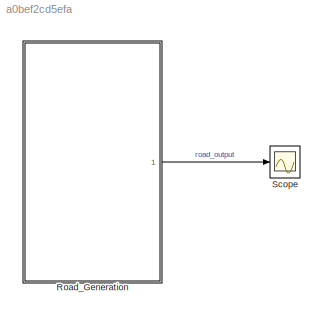
MODEL slx_a0bef2cd5efa
KIND model
CONFIG AbsTol = auto
CONFIG EnableMultiTasking = off
CONFIG FixedStep = auto
CONFIG MaxStep = 1e-4
CONFIG MinStep = auto
CONFIG RelTol = 1e-3
CONFIG SampleTimeConstraint = Unconstrained
CONFIG SolverName = VariableStepAuto
CONFIG StartTime = 0.0
CONFIG StopTime = 10.0
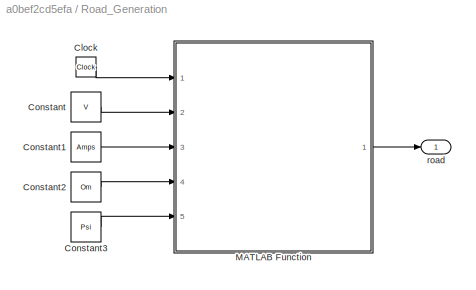
BLOCK [SubSystem] Road_Generation
  Ports = [0, 1]
  RequestExecContextInheritance = off
BLOCK [Clock] Road_Generation/Clock
BLOCK [Constant] Road_Generation/Constant
  Value = V
BLOCK [Constant] Road_Generation/Constant1
  Value = Amps
BLOCK [Constant] Road_Generation/Constant2
  Value = Om
BLOCK [Constant] Road_Generation/Constant3
  Value = Psi
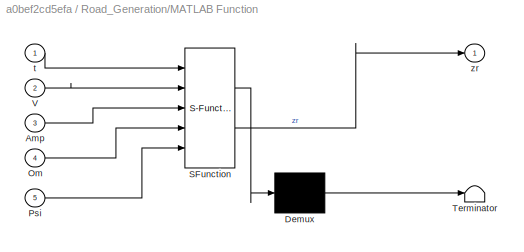
BLOCK [SubSystem] Road_Generation/MATLAB Function
  ErrorFcn = Stateflow.Translate.translate
  PermitHierarchicalResolution = ExplicitOnly
  Ports = [5, 1]
  RequestExecContextInheritance = off
  SFBlockType = MATLAB Function
  TreatAsAtomicUnit = on
BLOCK [Demux] Road_Generation/MATLAB Function/ Demux 
  Outputs = 1
  Ports = [1, 1]
BLOCK [S-Function] Road_Generation/MATLAB Function/ SFunction 
  EnableBusSupport = on
  FunctionName = sf_sfun
  PortCounts = [5 2]
  Ports = [5, 2]
  SFcnIsStateOwnerBlock = off
  SFunctionDeploymentMode = off
  Tag = Stateflow S-Function 2
BLOCK [Terminator] Road_Generation/MATLAB Function/ Terminator 
BLOCK [Inport] Road_Generation/MATLAB Function/Amp
  Port = 3
BLOCK [Inport] Road_Generation/MATLAB Function/Om
  Port = 4
BLOCK [Inport] Road_Generation/MATLAB Function/Psi
  Port = 5
BLOCK [Inport] Road_Generation/MATLAB Function/V
  Port = 2
BLOCK [Inport] Road_Generation/MATLAB Function/t
BLOCK [Outport] Road_Generation/MATLAB Function/zr
BLOCK [Outport] Road_Generation/road
BLOCK [Scope] Scope
  Floating = off
  NumInputPorts = 1
  Ports = [1]
  ScopeSpecificationString = Simulink.scopes.TimeScopeBlockCfg('CurrentConfiguration', extmgr.ConfigurationSet(extmgr.Configuration('Core','General UI',true),extmgr.Configuration('Core','Source UI',true),extmgr.Configuration('Sources','WiredSimulink',true),extmgr.Configuration('Visuals','Time Domain',true,'SerializedDisplays',{struct('MinYLimReal','-0.05375','MaxYLimReal','0.05375','YLabelReal','','MinYLimMag','0.00000','MaxY...<+1331ch>
LINE Road_Generation/Clock:1 -> Road_Generation/MATLAB Function:1
LINE Road_Generation/Constant1:1 -> Road_Generation/MATLAB Function:3
LINE Road_Generation/Constant2:1 -> Road_Generation/MATLAB Function:4
LINE Road_Generation/Constant3:1 -> Road_Generation/MATLAB Function:5
LINE Road_Generation/Constant:1 -> Road_Generation/MATLAB Function:2
LINE Road_Generation/MATLAB Function:1 -> Road_Generation/road:1
LINE Road_Generation:1 -> Scope:1
CHART Road_Generation/MATLAB Function states=1 transitions=1
  STATE_LABEL 'eML_blk_kernel()'
  STATE_LABEL 'SCRIPT:\nfunction zr = fun_02_qcm_road(t, V, Amp, Om, Psi)\n% quarter car model with trailing arm suspension on random road\n\n% pseudo random road input\ns = V*t; \nu = sum(Amp.*sin(Om*s+Psi)); \nzr = u;\n\nend'
CHART  states=0 transitions=0
